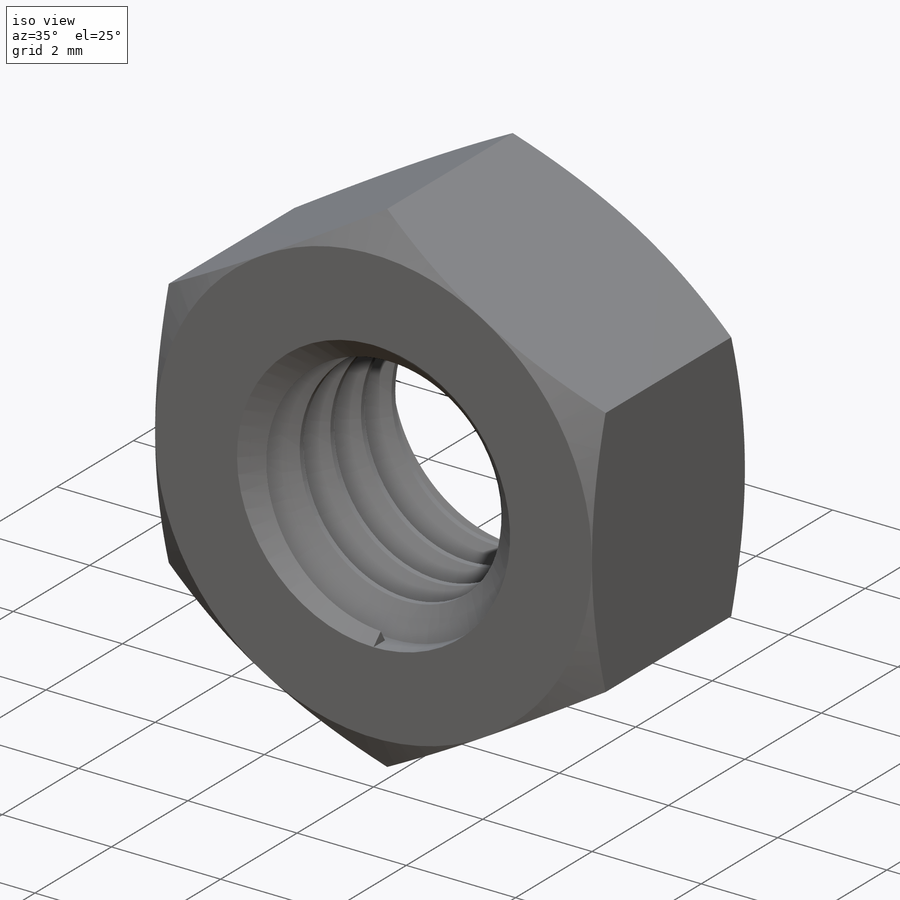
[diagram: iso view]
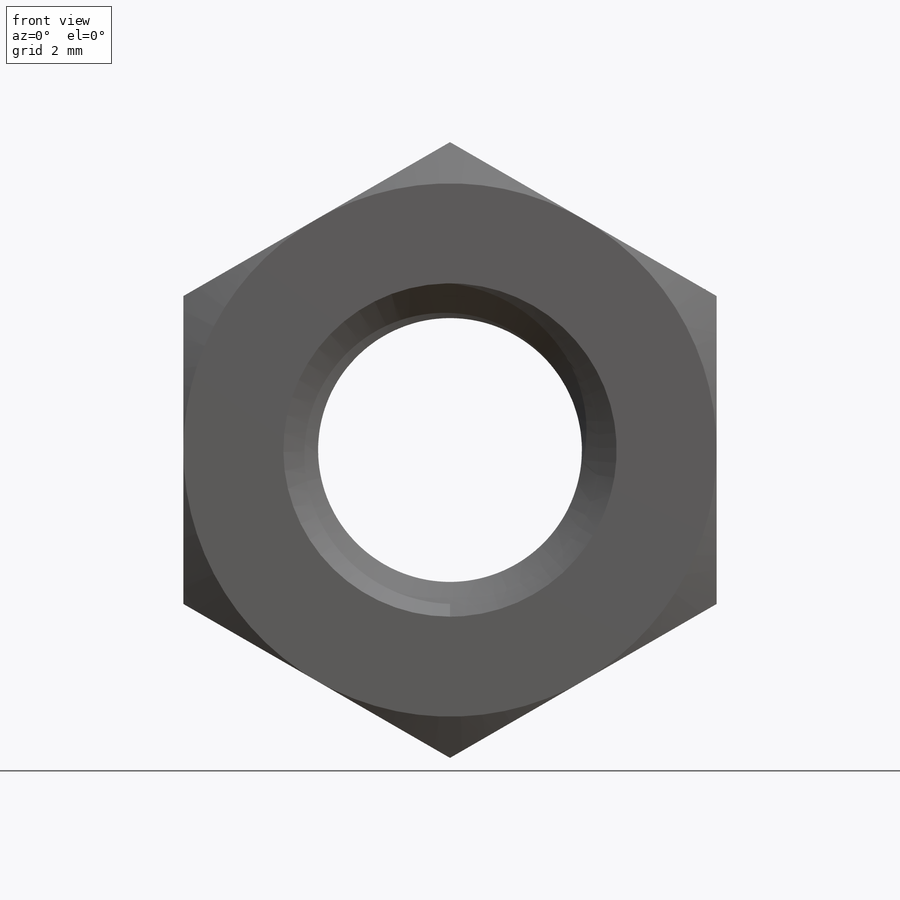
[diagram: front view]
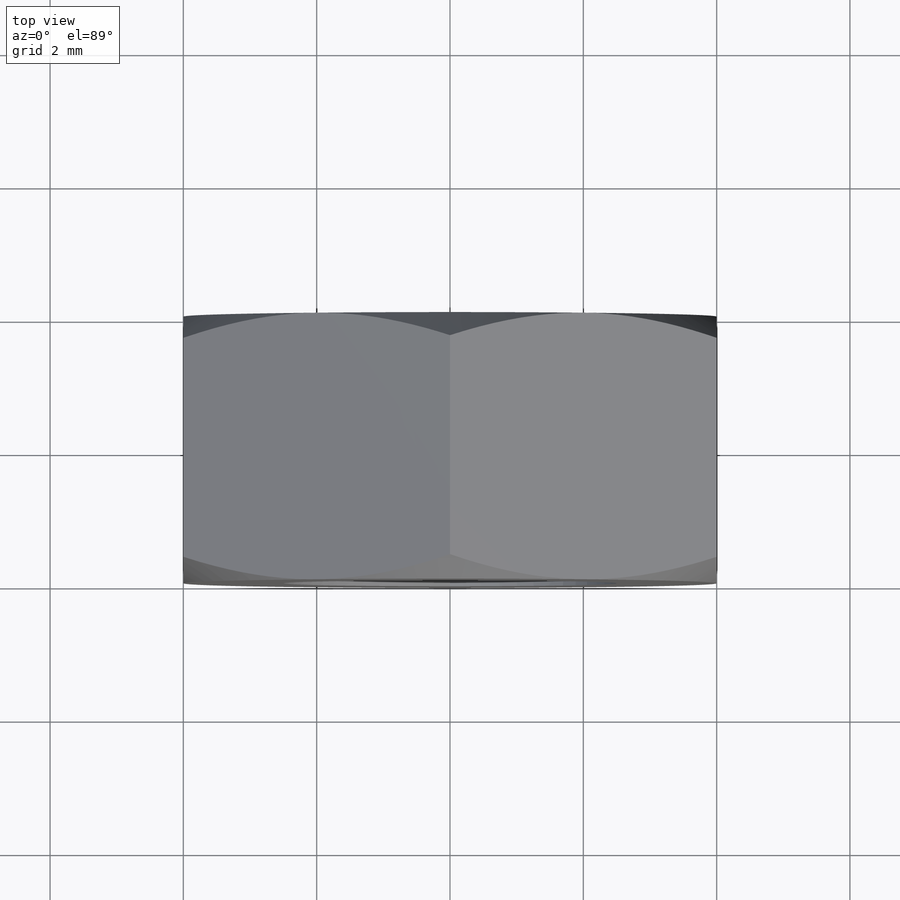
[diagram: top view]
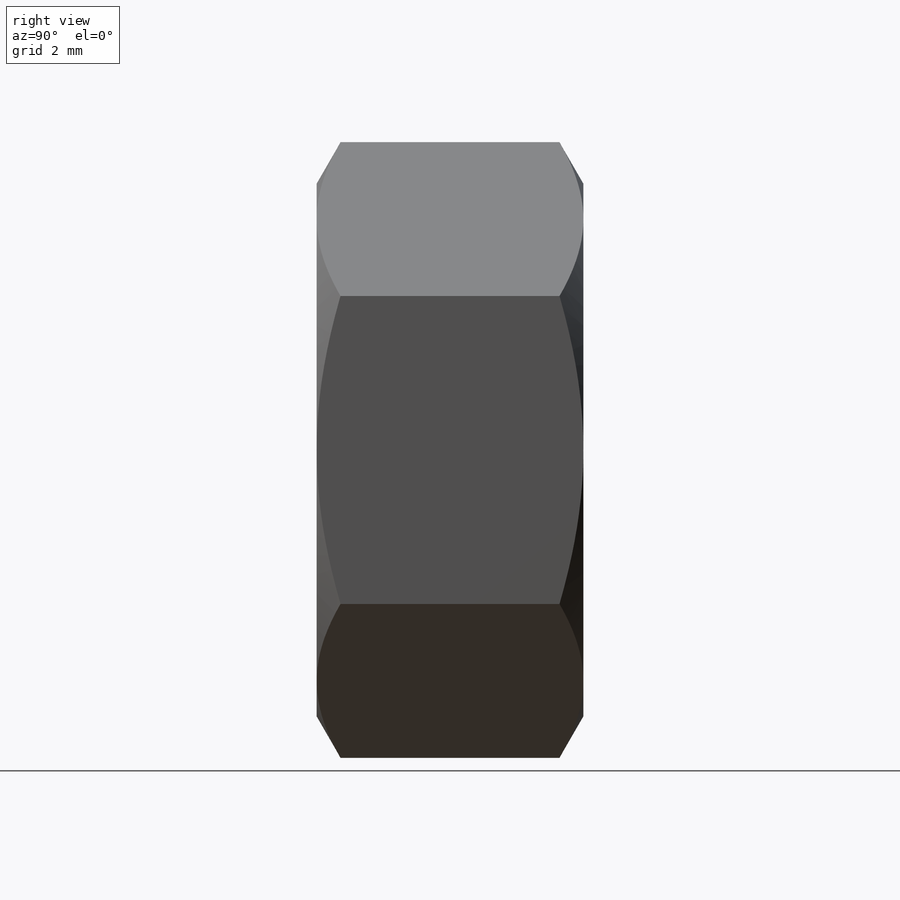
[diagram: right view]
SOLIDWORKS PART (.sldprt)
format: sldprt  version: not decoded by parser v0  size: 547,840 bytes
history: native  units: mm
features: sketch x9, cut_extrude x3, extrude x2, material x1, helix x1, sweep x1, boolean_combine x1, mirror x1 (+13 scaffold rows collapsed)
feature tree (32):
  scaffold x13  (default folders/planes/origin — collapsed)
  material  "Material <not specified>"
  sketch  "Sketch1"  dims[hex=8.0mm dia=5.0mm]
  extrude  "Extrude1"  Depth=4mm length=4mm
  sketch  "Sketch4"
  sketch  "Sketch10"
  cut_extrude  "Cut-Extrude2"  [1 undecoded]
  sketch  "Sketch11"
  cut_extrude  "Cut-Extrude3"  [1 undecoded]
  sketch  "Sketch13"
  extrude  "Boss-Extrude1"  [1 undecoded]
  helix  "Helix/Spiral3"  Pitch=4mm
  sketch  "Sketch12"  dims[c1.D1=~0.240021mm c2.D1=60.0deg c2.D2=0.1mm c2.D3=0.4mm]
  sweep  "Cut-Sweep1"
  boolean_combine  "Combine1"
  sketch  "Sketch7"
  cut_extrude  "Extrude2"  Depth=25.4mm
  mirror  "Mirror2"
  sketch  "Sketch8"  dims[c1.D1=3.175mm c2.D1=45.0deg]
  sketch  "Sketch14"
decode coverage: 6 of 18 modeling features carry decoded parameters
note: ~ marks probable driven/reference dimensions
note: 3 parameter values undecoded
summary: no parameter record found for 3 features
note: suppression state not decoded; provenance and decode notes live in map.json
